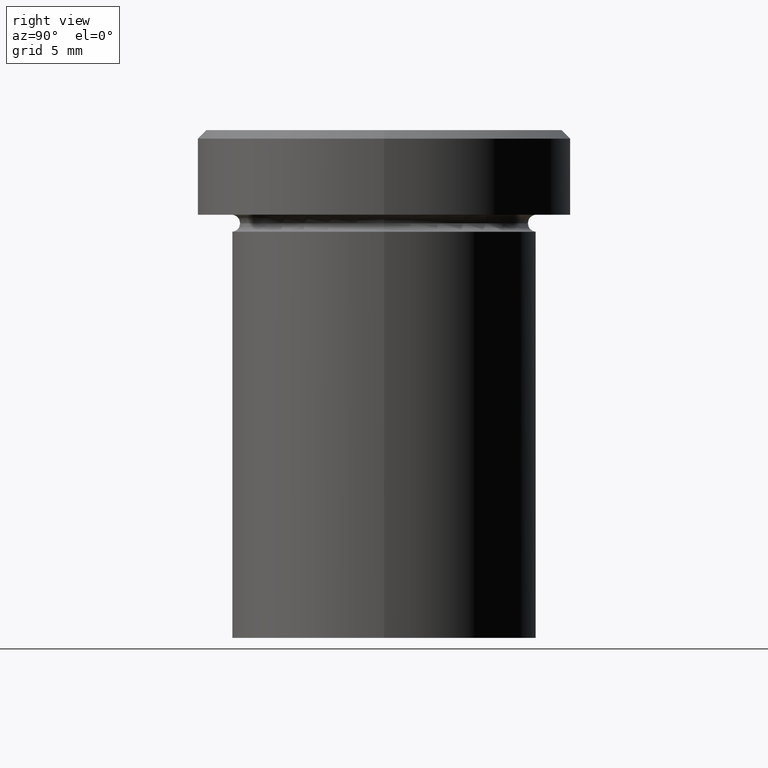
[diagram: clean part render]
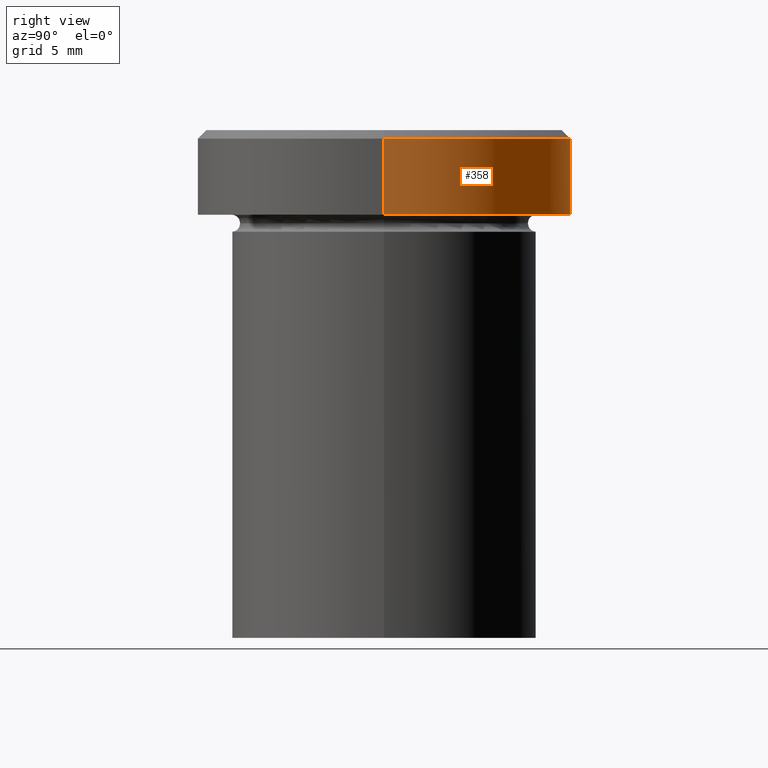
[diagram: same view with one face highlighted and labeled with its STEP entity id]
A machine part, right view. The second image highlights one B-rep face of the part: STEP entity #358.
In plain terms, the highlighted cylindrical surface (partial cylindrical patch) has radius 11 mm, axis along (-0, -0, 1).
Its self-contained STEP definition (entity closure, byte-faithful):
#6 = CARTESIAN_POINT ( 'NONE',  ( 11.00000000000000000, 0.000000000000000000, -0.5000000000000004441 ) ) ;
#10 = VECTOR ( 'NONE', #19, 1000.000000000000000 ) ;
#12 = VERTEX_POINT ( 'NONE', #49 ) ;
#19 = DIRECTION ( 'NONE',  ( -0.000000000000000000, -0.000000000000000000, 1.000000000000000000 ) ) ;
#24 = CARTESIAN_POINT ( 'NONE',  ( 11.00000000000000000, 0.000000000000000000, 0.000000000000000000 ) ) ;
#32 = EDGE_CURVE ( 'NONE', #12, #193, #369, .T. ) ;
#34 = EDGE_CURVE ( 'NONE', #188, #193, #171, .T. ) ;
#48 = CARTESIAN_POINT ( 'NONE',  ( -11.00000000000000000, 1.347111479062088405E-15, 0.000000000000000000 ) ) ;
#49 = CARTESIAN_POINT ( 'NONE',  ( -11.00000000000000000, 1.347111479062088405E-15, -0.5000000000000004441 ) ) ;
#52 = DIRECTION ( 'NONE',  ( 1.000000000000000000, 0.000000000000000000, 0.000000000000000000 ) ) ;
#54 = CARTESIAN_POINT ( 'NONE',  ( -11.00000000000000000, 1.347111479062088405E-15, -5.000000000000000000 ) ) ;
#58 = EDGE_LOOP ( 'NONE', ( #113, #173, #345, #359 ) ) ;
#75 = CARTESIAN_POINT ( 'NONE',  ( 11.00000000000000000, 0.000000000000000000, -5.000000000000000000 ) ) ;
#84 = DIRECTION ( 'NONE',  ( 0.000000000000000000, 0.000000000000000000, -1.000000000000000000 ) ) ;
#90 = CARTESIAN_POINT ( 'NONE',  ( 0.000000000000000000, 0.000000000000000000, -5.000000000000000000 ) ) ;
#113 = ORIENTED_EDGE ( 'NONE', *, *, #338, .T. ) ;
#119 = FACE_OUTER_BOUND ( 'NONE', #58, .T. ) ;
#139 = DIRECTION ( 'NONE',  ( -0.000000000000000000, -0.000000000000000000, 1.000000000000000000 ) ) ;
#152 = VECTOR ( 'NONE', #139, 1000.000000000000000 ) ;
#165 = LINE ( 'NONE', #48, #10 ) ;
#171 = LINE ( 'NONE', #24, #152 ) ;
#173 = ORIENTED_EDGE ( 'NONE', *, *, #354, .T. ) ;
#188 = VERTEX_POINT ( 'NONE', #75 ) ;
#193 = VERTEX_POINT ( 'NONE', #6 ) ;
#220 = AXIS2_PLACEMENT_3D ( 'NONE', #90, #248, #329 ) ;
#231 = DIRECTION ( 'NONE',  ( 1.000000000000000000, 0.000000000000000000, 0.000000000000000000 ) ) ;
#246 = CARTESIAN_POINT ( 'NONE',  ( 0.000000000000000000, 0.000000000000000000, -0.5000000000000004441 ) ) ;
#248 = DIRECTION ( 'NONE',  ( -0.000000000000000000, -0.000000000000000000, 1.000000000000000000 ) ) ;
#265 = DIRECTION ( 'NONE',  ( -0.000000000000000000, -0.000000000000000000, 1.000000000000000000 ) ) ;
#267 = CARTESIAN_POINT ( 'NONE',  ( 0.000000000000000000, 0.000000000000000000, 0.000000000000000000 ) ) ;
#273 = AXIS2_PLACEMENT_3D ( 'NONE', #246, #84, #52 ) ;
#275 = CIRCLE ( 'NONE', #220, 11.00000000000000000 ) ;
#298 = VERTEX_POINT ( 'NONE', #54 ) ;
#329 = DIRECTION ( 'NONE',  ( 1.000000000000000000, 0.000000000000000000, 0.000000000000000000 ) ) ;
#338 = EDGE_CURVE ( 'NONE', #188, #298, #275, .T. ) ;
#345 = ORIENTED_EDGE ( 'NONE', *, *, #32, .T. ) ;
#354 = EDGE_CURVE ( 'NONE', #298, #12, #165, .T. ) ;
#358 = ADVANCED_FACE ( 'NONE', ( #119 ), #363, .T. ) ;
#359 = ORIENTED_EDGE ( 'NONE', *, *, #34, .F. ) ;
#363 = CYLINDRICAL_SURFACE ( 'NONE', #389, 11.00000000000000000 ) ;
#369 = CIRCLE ( 'NONE', #273, 11.00000000000000000 ) ;
#389 = AXIS2_PLACEMENT_3D ( 'NONE', #267, #265, #231 ) ;